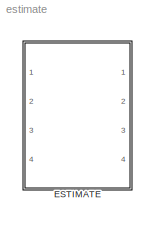
MODEL estimate
KIND model
CONFIG AbsTol = auto
CONFIG FixedStep = auto
CONFIG MaxStep = auto
CONFIG MinStep = auto
CONFIG RelTol = 1e-3
CONFIG Solver = ode45
CONFIG SolverMode = Auto
CONFIG StartTime = 0.0
CONFIG StopTime = 10.0
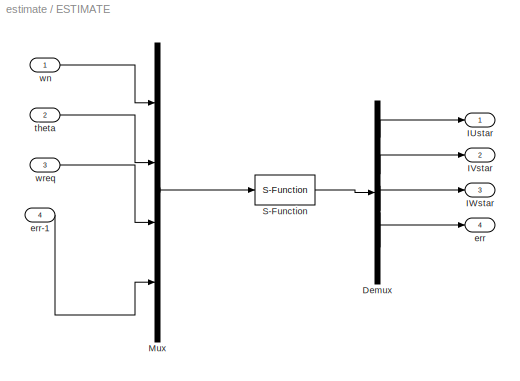
BLOCK [SubSystem] ESTIMATE
  MaskCallbackString = ||||||||||
  MaskDescription = This block calculates the required calue of current in all the three phases depending upon the speed requirement\n\nFor good results, phase difference should be kept at pi/2
  MaskEnableString = on,on,on,on,on,on,on,on,on,on,on
  MaskIconFrame = on
  MaskIconOpaque = on
  MaskIconRotate = none
  MaskIconUnits = autoscale
  MaskPromptString = Number of turns per phase|Maximum value of magnetic field intensity|moment of inertia|viscous friction|Rotor radius|Rotor length|phase difference between current nd torque|Proportionality constant|Integral constant|differential constant|rated base current(A)
  MaskStyleString = edit,edit,edit,edit,edit,edit,edit,edit,edit,edit,edit
  MaskToolTipString = on,on,on,on,on,on,on,on,on,on,on
  MaskTunableValueString = on,on,on,on,on,on,on,on,on,on,on
  MaskValueString = 100|49/60|0.0002|0.002|0.02|0.03|pi/2|10|5|10|34
  MaskVarAliasString = ,,,,,,,,,,
  MaskVariables = N=@1;BM=@2;J=@3;DF=@4;Rr=@5;Rl=@6;delta=@7;KP=@8;KI=@9;KD=@10;basecurr=@11;
  MaskVisibilityString = on,on,on,on,on,on,on,on,on,on,on
  Ports = [4, 4]
  TreatAsAtomicUnit = off
BLOCK [Demux] ESTIMATE/Demux
  Ports = [1, 4]
BLOCK [Outport] ESTIMATE/IUstar
BLOCK [Outport] ESTIMATE/IVstar
  Port = 2
BLOCK [Outport] ESTIMATE/IWstar
  Port = 3
BLOCK [Mux] ESTIMATE/Mux
  DisplayOption = bar
  Ports = [4, 1]
BLOCK [S-Function] ESTIMATE/S-Function
  FunctionName = calc_core
  Parameters = J,DF,N,BM,Rr,Rl,delta,KP,KI,KD,basecurr
  Ports = [1, 1]
BLOCK [Outport] ESTIMATE/err
  Port = 4
BLOCK [Inport] ESTIMATE/err-1
  Port = 4
BLOCK [Inport] ESTIMATE/theta
  Port = 2
BLOCK [Inport] ESTIMATE/wn
BLOCK [Inport] ESTIMATE/wreq
  Port = 3
LINE ESTIMATE/Demux:1 -> ESTIMATE/IUstar:1
LINE ESTIMATE/Demux:2 -> ESTIMATE/IVstar:1
LINE ESTIMATE/Demux:3 -> ESTIMATE/IWstar:1
LINE ESTIMATE/Demux:4 -> ESTIMATE/err:1
LINE ESTIMATE/Mux:1 -> ESTIMATE/S-Function:1
LINE ESTIMATE/S-Function:1 -> ESTIMATE/Demux:1
LINE ESTIMATE/err-1:1 -> ESTIMATE/Mux:4
LINE ESTIMATE/theta:1 -> ESTIMATE/Mux:2
LINE ESTIMATE/wn:1 -> ESTIMATE/Mux:1
LINE ESTIMATE/wreq:1 -> ESTIMATE/Mux:3
